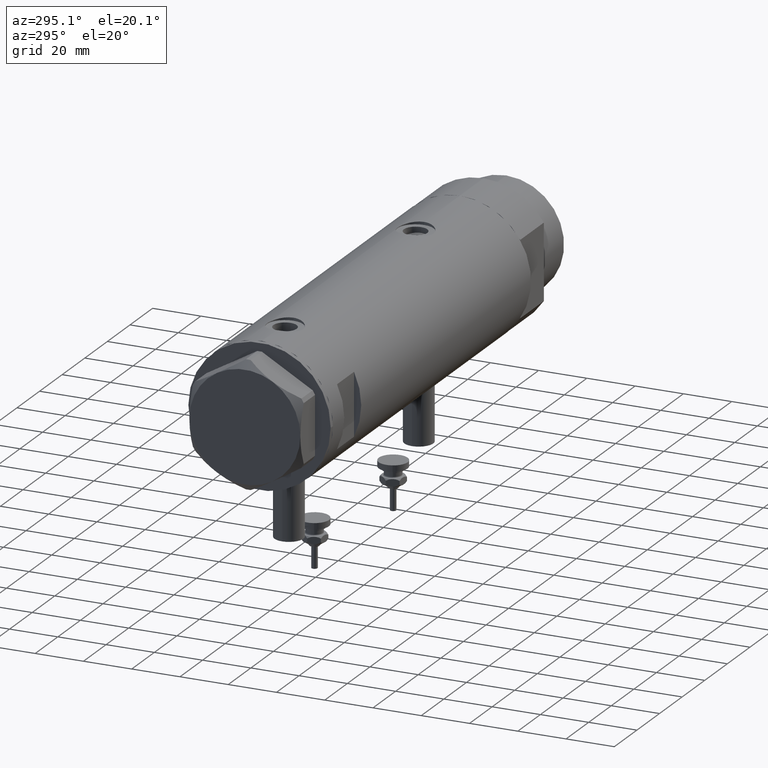
[diagram: clean part render]
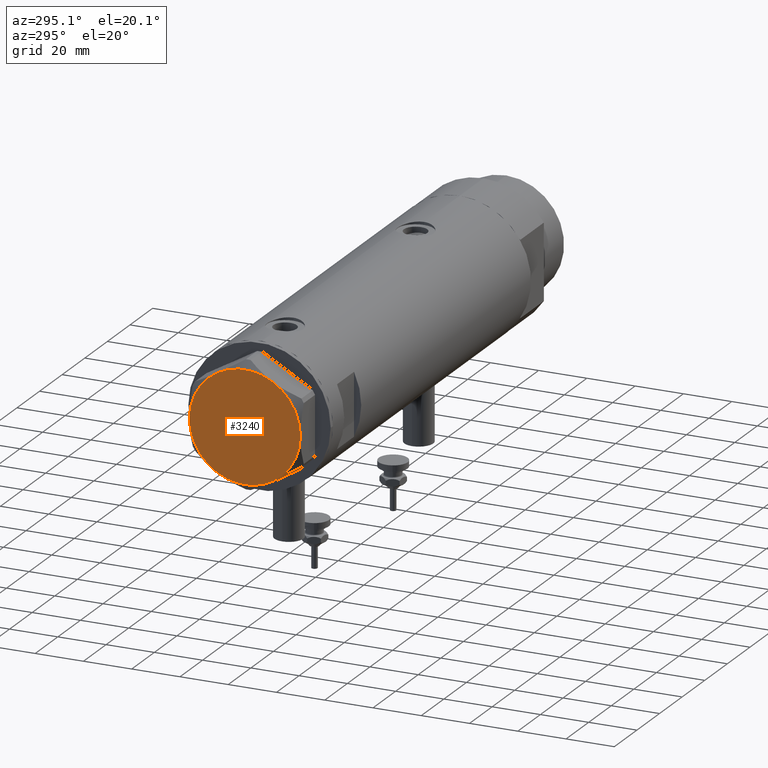
[diagram: same view with one face highlighted and labeled with its STEP entity id]
A machine part, auxiliary view. The second image highlights one B-rep face of the part: STEP entity #3240.
In plain terms, the highlighted planar face has unit normal (-1, -0, 0).
Its self-contained STEP definition (entity closure, byte-faithful):
#55 = CARTESIAN_POINT ( 'NONE',  ( -23.00000000000004619, -8.112498833180673323E-14, 13.00000000000000000 ) ) ;
#169 = AXIS2_PLACEMENT_3D ( 'NONE', #1749, #1371, #5021 ) ;
#253 = AXIS2_PLACEMENT_3D ( 'NONE', #1261, #3951, #5851 ) ;
#370 = VERTEX_POINT ( 'NONE', #3831 ) ;
#431 = VERTEX_POINT ( 'NONE', #4796 ) ;
#474 = DIRECTION ( 'NONE',  ( 0.000000000000000000, 0.000000000000000000, 1.000000000000000000 ) ) ;
#549 = AXIS2_PLACEMENT_3D ( 'NONE', #5518, #474, #2208 ) ;
#640 = AXIS2_PLACEMENT_3D ( 'NONE', #4428, #899, #5371 ) ;
#751 = CIRCLE ( 'NONE', #2642, 23.00000000000004619 ) ;
#767 = CARTESIAN_POINT ( 'NONE',  ( 0.000000000000000000, 0.000000000000000000, 13.00000000000000000 ) ) ;
#899 = DIRECTION ( 'NONE',  ( 0.000000000000000000, 0.000000000000000000, 1.000000000000000000 ) ) ;
#919 = VERTEX_POINT ( 'NONE', #4876 ) ;
#1261 = CARTESIAN_POINT ( 'NONE',  ( 0.000000000000000000, 0.000000000000000000, 13.00000000000000000 ) ) ;
#1371 = DIRECTION ( 'NONE',  ( 0.000000000000000000, 0.000000000000000000, 1.000000000000000000 ) ) ;
#1409 = AXIS2_PLACEMENT_3D ( 'NONE', #4758, #2875, #4729 ) ;
#1506 = AXIS2_PLACEMENT_3D ( 'NONE', #767, #2993, #3941 ) ;
#1659 = CARTESIAN_POINT ( 'NONE',  ( 0.000000000000000000, 0.000000000000000000, 13.00000000000000000 ) ) ;
#1749 = CARTESIAN_POINT ( 'NONE',  ( 0.000000000000000000, 0.000000000000000000, 13.00000000000000000 ) ) ;
#1755 = PLANE ( 'NONE',  #253 ) ;
#1776 = ORIENTED_EDGE ( 'NONE', *, *, #4191, .T. ) ;
#2167 = DIRECTION ( 'NONE',  ( 0.000000000000000000, 0.000000000000000000, 1.000000000000000000 ) ) ;
#2208 = DIRECTION ( 'NONE',  ( 1.000000000000000000, 0.000000000000000000, 0.000000000000000000 ) ) ;
#2350 = ORIENTED_EDGE ( 'NONE', *, *, #3111, .T. ) ;
#2438 = CIRCLE ( 'NONE', #1409, 23.00000000000004619 ) ;
#2642 = AXIS2_PLACEMENT_3D ( 'NONE', #1659, #2167, #4421 ) ;
#2699 = FACE_OUTER_BOUND ( 'NONE', #3458, .T. ) ;
#2811 = CIRCLE ( 'NONE', #640, 23.00000000000004619 ) ;
#2875 = DIRECTION ( 'NONE',  ( 0.000000000000000000, 0.000000000000000000, 1.000000000000000000 ) ) ;
#2993 = DIRECTION ( 'NONE',  ( 0.000000000000000000, 0.000000000000000000, 1.000000000000000000 ) ) ;
#3111 = EDGE_CURVE ( 'NONE', #4334, #919, #2438, .T. ) ;
#3115 = CIRCLE ( 'NONE', #1506, 23.00000000000004619 ) ;
#3118 = CIRCLE ( 'NONE', #549, 23.00000000000004619 ) ;
#3238 = EDGE_CURVE ( 'NONE', #431, #4148, #2811, .T. ) ;
#3240 = ADVANCED_FACE ( 'NONE', ( #2699 ), #1755, .T. ) ;
#3458 = EDGE_LOOP ( 'NONE', ( #3871, #5773, #5821, #1776, #2350, #4493 ) ) ;
#3504 = CARTESIAN_POINT ( 'NONE',  ( 11.49999999999990408, 19.91858428704219364, 13.00000000000000000 ) ) ;
#3714 = EDGE_CURVE ( 'NONE', #4148, #4069, #3115, .T. ) ;
#3795 = EDGE_CURVE ( 'NONE', #4069, #370, #4851, .T. ) ;
#3831 = CARTESIAN_POINT ( 'NONE',  ( -11.50000000000004441, 19.91858428704211548, 13.00000000000000000 ) ) ;
#3871 = ORIENTED_EDGE ( 'NONE', *, *, #3238, .T. ) ;
#3941 = DIRECTION ( 'NONE',  ( 1.000000000000000000, 0.000000000000000000, 0.000000000000000000 ) ) ;
#3951 = DIRECTION ( 'NONE',  ( 0.000000000000000000, 0.000000000000000000, 1.000000000000000000 ) ) ;
#4021 = CARTESIAN_POINT ( 'NONE',  ( 22.99999999999995026, 2.373657066004705010E-13, 13.00000000000000000 ) ) ;
#4069 = VERTEX_POINT ( 'NONE', #3504 ) ;
#4148 = VERTEX_POINT ( 'NONE', #4021 ) ;
#4191 = EDGE_CURVE ( 'NONE', #370, #4334, #3118, .T. ) ;
#4334 = VERTEX_POINT ( 'NONE', #55 ) ;
#4421 = DIRECTION ( 'NONE',  ( 1.000000000000000000, 0.000000000000000000, 0.000000000000000000 ) ) ;
#4428 = CARTESIAN_POINT ( 'NONE',  ( 0.000000000000000000, 0.000000000000000000, 13.00000000000000000 ) ) ;
#4493 = ORIENTED_EDGE ( 'NONE', *, *, #4600, .T. ) ;
#4600 = EDGE_CURVE ( 'NONE', #919, #431, #751, .T. ) ;
#4729 = DIRECTION ( 'NONE',  ( 1.000000000000000000, 0.000000000000000000, 0.000000000000000000 ) ) ;
#4758 = CARTESIAN_POINT ( 'NONE',  ( 0.000000000000000000, 0.000000000000000000, 13.00000000000000000 ) ) ;
#4796 = CARTESIAN_POINT ( 'NONE',  ( 11.50000000000018296, -19.91858428704203732, 13.00000000000000000 ) ) ;
#4851 = CIRCLE ( 'NONE', #169, 23.00000000000004619 ) ;
#4876 = CARTESIAN_POINT ( 'NONE',  ( -11.49999999999990585, -19.91858428704219364, 13.00000000000000000 ) ) ;
#5021 = DIRECTION ( 'NONE',  ( 1.000000000000000000, 0.000000000000000000, 0.000000000000000000 ) ) ;
#5371 = DIRECTION ( 'NONE',  ( 1.000000000000000000, 0.000000000000000000, 0.000000000000000000 ) ) ;
#5518 = CARTESIAN_POINT ( 'NONE',  ( 0.000000000000000000, 0.000000000000000000, 13.00000000000000000 ) ) ;
#5773 = ORIENTED_EDGE ( 'NONE', *, *, #3714, .T. ) ;
#5821 = ORIENTED_EDGE ( 'NONE', *, *, #3795, .T. ) ;
#5851 = DIRECTION ( 'NONE',  ( 1.000000000000000000, 0.000000000000000000, -0.000000000000000000 ) ) ;